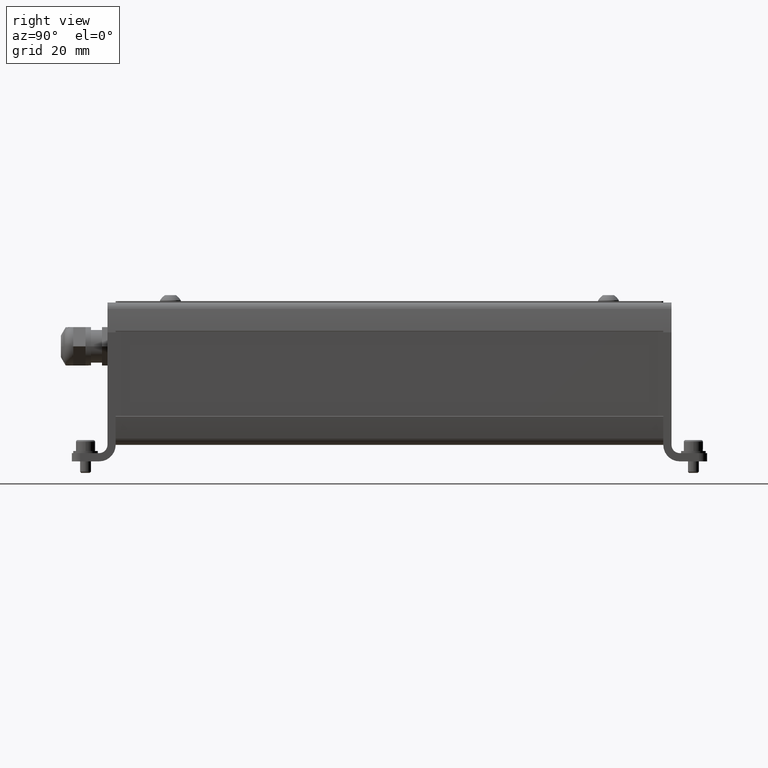
[diagram: clean part render]
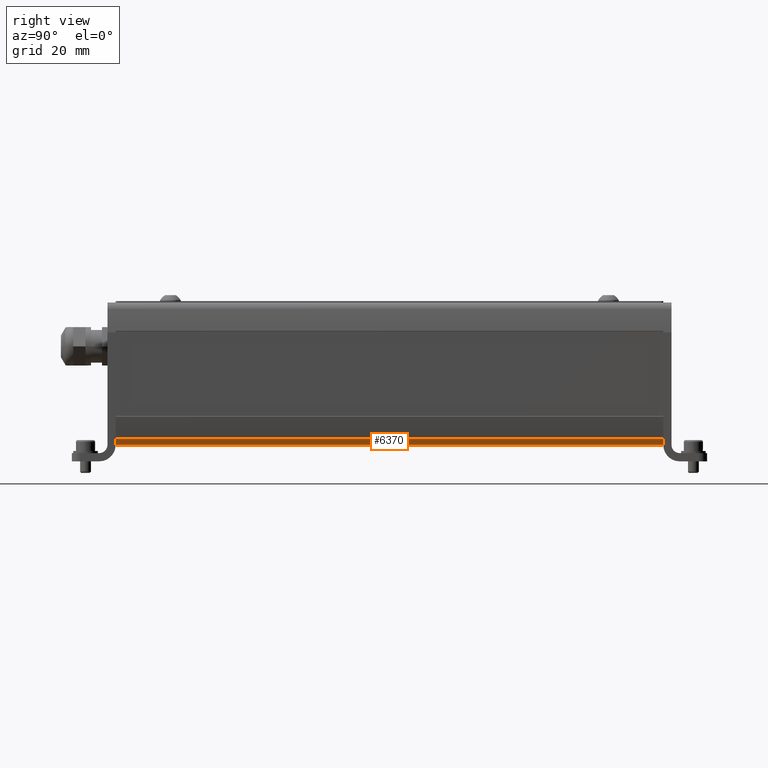
[diagram: same view with one face highlighted and labeled with its STEP entity id]
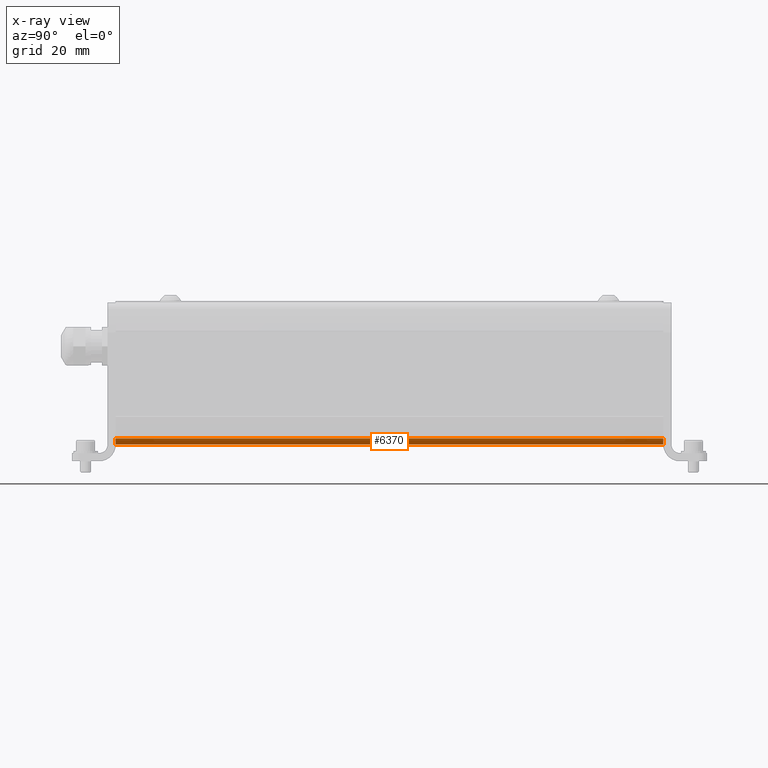
[diagram: x-ray of the same camera — body ghosted, the highlighted face saturated]
A machine part, right view. The second image highlights one B-rep face of the part: STEP entity #6370.
The next image is the same camera in x-ray: the body ghosted, the highlighted face saturated — about 0% of this face is hidden behind the body in this view.
In plain terms, the highlighted cylindrical surface (edge-blend (fillet) strip) has radius 3 mm, axis along (0, -1, 0).
Its self-contained STEP definition (entity closure, byte-faithful):
#6310=CARTESIAN_POINT('',(52.037496744025447,-23.618834080717065,99.999999999999943));
#6311=VERTEX_POINT('',#6310);
#6319=CARTESIAN_POINT('',(52.037496744025447,-23.618834080717065,-100.0));
#6320=VERTEX_POINT('',#6319);
#6321=CARTESIAN_POINT('',(52.037496744025447,-23.618834080717065,-100.0));
#6322=DIRECTION('',(0.0,0.0,1.0));
#6323=VECTOR('',#6322,199.999999999999940);
#6324=LINE('',#6321,#6323);
#6325=EDGE_CURVE('',#6320,#6311,#6324,.T.);
#6338=CARTESIAN_POINT('',(49.102016479989828,-22.999999999999595,-100.0));
#6339=DIRECTION('',(0.0,0.0,1.0));
#6340=DIRECTION('',(1.0,0.0,0.0));
#6341=AXIS2_PLACEMENT_3D('',#6338,#6339,#6340);
#6342=CYLINDRICAL_SURFACE('',#6341,3.0);
#6343=CARTESIAN_POINT('',(49.102016479989828,-25.999999999999595,99.999999999999943));
#6344=VERTEX_POINT('',#6343);
#6345=CARTESIAN_POINT('',(49.102016479989828,-22.999999999999595,100.0));
#6346=DIRECTION('',(0.0,0.0,-1.0));
#6347=DIRECTION('',(1.0,0.0,0.0));
#6348=AXIS2_PLACEMENT_3D('',#6345,#6346,#6347);
#6349=CIRCLE('',#6348,3.0);
#6350=EDGE_CURVE('',#6311,#6344,#6349,.T.);
#6351=ORIENTED_EDGE('',*,*,#6350,.T.);
#6352=CARTESIAN_POINT('',(49.102016479989828,-25.999999999999595,-100.0));
#6353=VERTEX_POINT('',#6352);
#6354=CARTESIAN_POINT('',(49.102016479989828,-25.999999999999595,-100.0));
#6355=DIRECTION('',(0.0,0.0,1.0));
#6356=VECTOR('',#6355,199.999999999999940);
#6357=LINE('',#6354,#6356);
#6358=EDGE_CURVE('',#6353,#6344,#6357,.T.);
#6359=ORIENTED_EDGE('',*,*,#6358,.F.);
#6360=CARTESIAN_POINT('',(49.102016479989828,-22.999999999999595,-100.0));
#6361=DIRECTION('',(0.0,0.0,-1.0));
#6362=DIRECTION('',(1.0,0.0,0.0));
#6363=AXIS2_PLACEMENT_3D('',#6360,#6361,#6362);
#6364=CIRCLE('',#6363,3.0);
#6365=EDGE_CURVE('',#6320,#6353,#6364,.T.);
#6366=ORIENTED_EDGE('',*,*,#6365,.F.);
#6367=ORIENTED_EDGE('',*,*,#6325,.T.);
#6368=EDGE_LOOP('',(#6351,#6359,#6366,#6367));
#6369=FACE_OUTER_BOUND('',#6368,.T.);
#6370=ADVANCED_FACE('',(#6369),#6342,.T.);